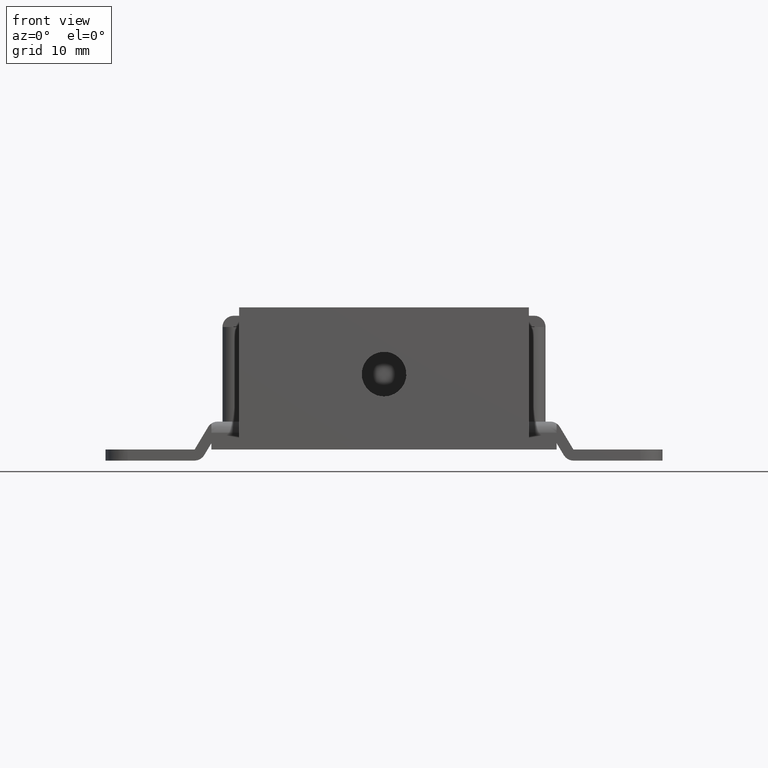
[diagram: clean part render]
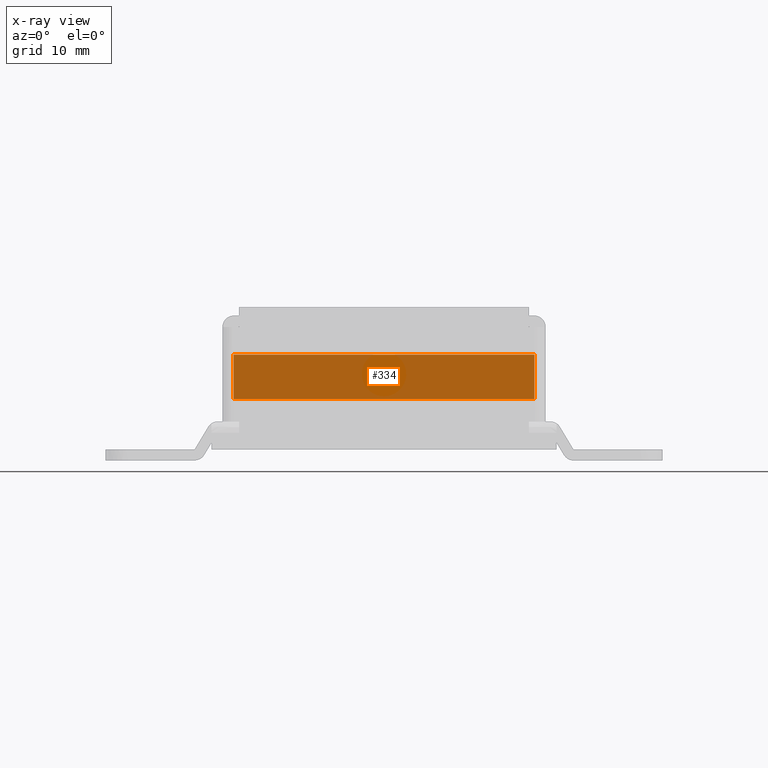
[diagram: x-ray — body ghosted, one internal face saturated and labeled with its STEP entity id]
A machine part, front view, then the same camera in x-ray: the body is ghosted and one INTERNAL B-rep face — a face not visible from any outside direction — is saturated and labeled: STEP entity #334.
In plain terms, the highlighted face is a freeform B-spline surface patch.
Its self-contained STEP definition (entity closure, byte-faithful):
#299=CARTESIAN_POINT('',(-14.848649947668759,-15.0,9.699799992247057));
#300=CARTESIAN_POINT('',(14.848650671865190,-15.0,9.699799992247057));
#301=CARTESIAN_POINT('',(-14.848649947668759,-15.0,5.300199900464245));
#302=CARTESIAN_POINT('',(14.848650671865190,-15.0,5.300199900464245));
#303=B_SPLINE_SURFACE_WITH_KNOTS('',1,1,((#299,#301),(#300,#302)),.UNSPECIFIED.,.F.,.F.,.U.,(2,2),(2,2),(0.0,29.697300619533959),(0.0,4.399600091782812),.UNSPECIFIED.);
#304=CARTESIAN_POINT('',(13.500000000000000,-15.0,9.499999999999831));
#305=VERTEX_POINT('',#304);
#306=CARTESIAN_POINT('',(-13.500000000000000,-15.0,9.499999999999831));
#307=VERTEX_POINT('',#306);
#308=CARTESIAN_POINT('',(13.500000000000000,-15.0,9.499999999999831));
#309=CARTESIAN_POINT('',(-13.500000000000000,-15.0,9.499999999999831));
#310=QUASI_UNIFORM_CURVE('',1,(#308,#309),.UNSPECIFIED.,.F.,.U.);
#311=EDGE_CURVE('',#305,#307,#310,.T.);
#312=ORIENTED_EDGE('',*,*,#311,.F.);
#313=CARTESIAN_POINT('',(13.500000000000000,-15.0,5.499999999999830));
#314=VERTEX_POINT('',#313);
#315=CARTESIAN_POINT('',(13.500000000000000,-15.0,5.499999999999830));
#316=CARTESIAN_POINT('',(13.500000000000000,-15.0,9.499999999999831));
#317=QUASI_UNIFORM_CURVE('',1,(#315,#316),.UNSPECIFIED.,.F.,.U.);
#318=EDGE_CURVE('',#314,#305,#317,.T.);
#319=ORIENTED_EDGE('',*,*,#318,.F.);
#320=CARTESIAN_POINT('',(-13.500000000000000,-15.0,5.499999999999830));
#321=VERTEX_POINT('',#320);
#322=CARTESIAN_POINT('',(-13.500000000000000,-15.0,5.499999999999830));
#323=CARTESIAN_POINT('',(13.500000000000000,-15.0,5.499999999999830));
#324=QUASI_UNIFORM_CURVE('',1,(#322,#323),.UNSPECIFIED.,.F.,.U.);
#325=EDGE_CURVE('',#321,#314,#324,.T.);
#326=ORIENTED_EDGE('',*,*,#325,.F.);
#327=CARTESIAN_POINT('',(-13.500000000000000,-15.0,9.499999999999831));
#328=CARTESIAN_POINT('',(-13.500000000000000,-15.0,5.499999999999830));
#329=QUASI_UNIFORM_CURVE('',1,(#327,#328),.UNSPECIFIED.,.F.,.U.);
#330=EDGE_CURVE('',#307,#321,#329,.T.);
#331=ORIENTED_EDGE('',*,*,#330,.F.);
#332=EDGE_LOOP('',(#312,#319,#326,#331));
#333=FACE_OUTER_BOUND('',#332,.T.);
#334=ADVANCED_FACE('',(#333),#303,.T.);